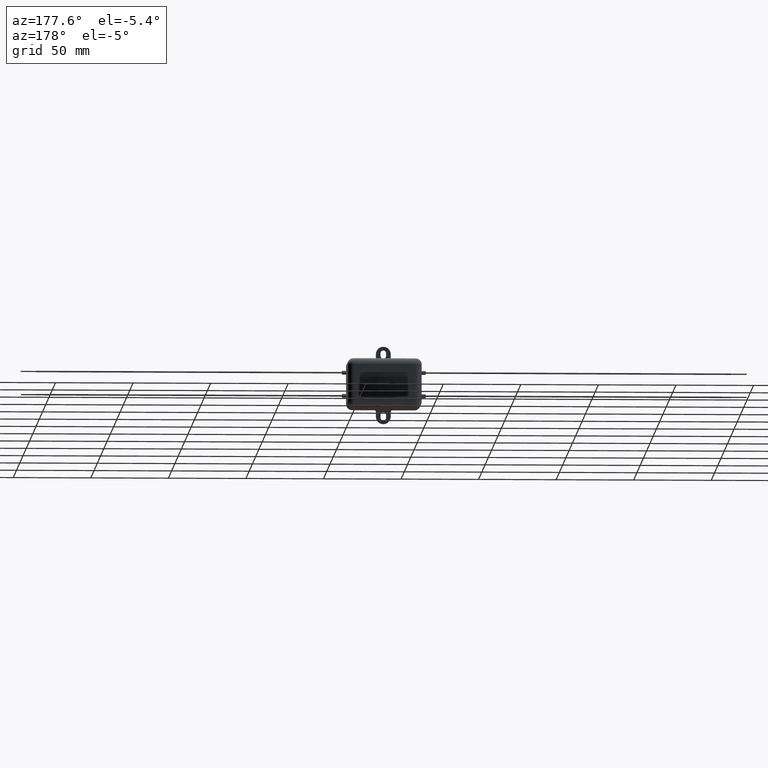
[diagram: clean part render]
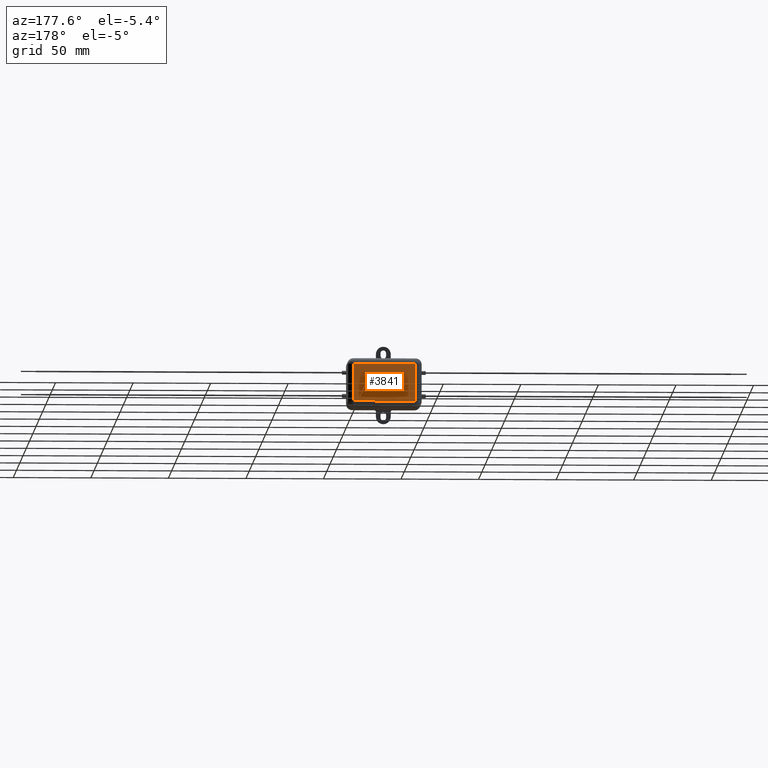
[diagram: same view with one face highlighted and labeled with its STEP entity id]
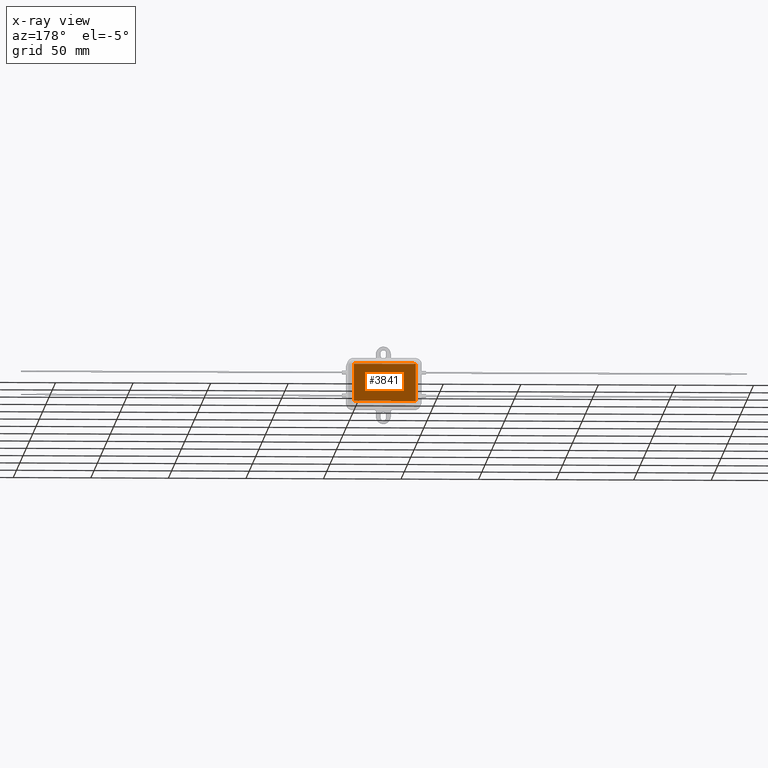
[diagram: x-ray of the same camera — body ghosted, the highlighted face saturated]
A machine part, auxiliary view. The second image highlights one B-rep face of the part: STEP entity #3841.
The next image is the same camera in x-ray: the body ghosted, the highlighted face saturated — about 0% of this face is hidden behind the body in this view.
In plain terms, the highlighted planar face has unit normal (0, -1, 0).
Its self-contained STEP definition (entity closure, byte-faithful):
#20 = CARTESIAN_POINT ( 'NONE',  ( 14.83493621545370000, 22.00000000000000000, -13.57643163523669300 ) ) ;
#24 = VECTOR ( 'NONE', #89, 1000.000000000000000 ) ;
#33 = VECTOR ( 'NONE', #1306, 1000.000000000000000 ) ;
#34 = CARTESIAN_POINT ( 'NONE',  ( 36.09030853154751400, 22.00000000000000000, -17.48081421924308600 ) ) ;
#51 = CARTESIAN_POINT ( 'NONE',  ( 29.69901283016910700, 22.00000000000000000, -17.49399904009918300 ) ) ;
#62 = VECTOR ( 'NONE', #2306, 1000.000000000000200 ) ;
#74 = VECTOR ( 'NONE', #1830, 1000.000000000000100 ) ;
#86 = EDGE_CURVE ( 'NONE', #4508, #816, #3597, .T. ) ;
#89 = DIRECTION ( 'NONE',  ( -1.000000000000000000, 0.0000000000000000000, 0.0000000000000000000 ) ) ;
#93 = DIRECTION ( 'NONE',  ( 0.2746459304916880600, 0.0000000000000000000, -0.9615454294334484500 ) ) ;
#95 = ORIENTED_EDGE ( 'NONE', *, *, #3719, .F. ) ;
#98 = DIRECTION ( 'NONE',  ( -1.000000000000000000, 0.0000000000000000000, 0.0000000000000000000 ) ) ;
#110 = VECTOR ( 'NONE', #98, 1000.000000000000000 ) ;
#132 = CARTESIAN_POINT ( 'NONE',  ( 32.18317459056929400, 22.00000000000000000, -18.41519455726100700 ) ) ;
#137 = VERTEX_POINT ( 'NONE', #398 ) ;
#141 = LINE ( 'NONE', #2710, #2344 ) ;
#154 = CARTESIAN_POINT ( 'NONE',  ( 36.35883328403941300, 22.00000000000000000, -18.41519455726100700 ) ) ;
#168 = ORIENTED_EDGE ( 'NONE', *, *, #1137, .F. ) ;
#171 = CARTESIAN_POINT ( 'NONE',  ( 25.38734935549757700, 22.00000000000000000, -13.57643163523669300 ) ) ;
#177 = EDGE_CURVE ( 'NONE', #3521, #4200, #2600, .T. ) ;
#205 = VECTOR ( 'NONE', #2843, 1000.000000000000200 ) ;
#211 = VECTOR ( 'NONE', #93, 1000.000000000000100 ) ;
#215 = EDGE_CURVE ( 'NONE', #2736, #137, #4352, .T. ) ;
#228 = VERTEX_POINT ( 'NONE', #3271 ) ;
#237 = CARTESIAN_POINT ( 'NONE',  ( 19.08610836929973300, 22.00000000000000000, -16.59415174206769800 ) ) ;
#244 = VECTOR ( 'NONE', #5015, 1000.000000000000100 ) ;
#280 = VECTOR ( 'NONE', #2840, 1000.000000000000000 ) ;
#287 = FACE_BOUND ( 'NONE', #4386, .T. ) ;
#291 = LINE ( 'NONE', #2863, #33 ) ;
#298 = VERTEX_POINT ( 'NONE', #237 ) ;
#299 = EDGE_CURVE ( 'NONE', #4662, #4840, #4476, .T. ) ;
#302 = ORIENTED_EDGE ( 'NONE', *, *, #3122, .T. ) ;
#303 = CARTESIAN_POINT ( 'NONE',  ( 26.61695381072859600, 22.00000000000000000, -13.57643163523669300 ) ) ;
#329 = DIRECTION ( 'NONE',  ( -0.2762517575166424900, 0.0000000000000000000, 0.9610853065513831300 ) ) ;
#330 = CARTESIAN_POINT ( 'NONE',  ( 11.65137384793949200, 22.00000000000000000, -13.57643163523669300 ) ) ;
#351 = DIRECTION ( 'NONE',  ( 1.000000000000000000, 0.0000000000000000000, 0.0000000000000000000 ) ) ;
#367 = VERTEX_POINT ( 'NONE', #3073 ) ;
#374 = LINE ( 'NONE', #2489, #2214 ) ;
#384 = VECTOR ( 'NONE', #1727, 1000.000000000000000 ) ;
#387 = DIRECTION ( 'NONE',  ( 0.9999891854650020400, 0.0000000000000000000, 0.004650693823679311400 ) ) ;
#388 = VECTOR ( 'NONE', #4697, 1000.000000000000000 ) ;
#389 = EDGE_CURVE ( 'NONE', #3911, #699, #2928, .T. ) ;
#398 = CARTESIAN_POINT ( 'NONE',  ( 28.59108292885930400, 22.00000000000000000, -18.41519455726100700 ) ) ;
#418 = DIRECTION ( 'NONE',  ( -1.000000000000000000, 0.0000000000000000000, 0.0000000000000000000 ) ) ;
#442 = LINE ( 'NONE', #2971, #4214 ) ;
#448 = EDGE_CURVE ( 'NONE', #4311, #298, #3534, .T. ) ;
#455 = EDGE_CURVE ( 'NONE', #1007, #3488, #697, .T. ) ;
#464 = ORIENTED_EDGE ( 'NONE', *, *, #2799, .F. ) ;
#470 = VERTEX_POINT ( 'NONE', #5085 ) ;
#473 = EDGE_CURVE ( 'NONE', #2396, #3633, #2862, .T. ) ;
#483 = VECTOR ( 'NONE', #2909, 1000.000000000000200 ) ;
#496 = DIRECTION ( 'NONE',  ( -0.05596501978067839500, 0.0000000000000000000, 0.9984327301130248000 ) ) ;
#504 = ORIENTED_EDGE ( 'NONE', *, *, #1569, .F. ) ;
#511 = ORIENTED_EDGE ( 'NONE', *, *, #814, .F. ) ;
#512 = CARTESIAN_POINT ( 'NONE',  ( 13.82823012359501600, 22.00000000000000000, -16.35175897160676700 ) ) ;
#531 = FACE_OUTER_BOUND ( 'NONE', #1821, .T. ) ;
#558 = LINE ( 'NONE', #3047, #5060 ) ;
#577 = VECTOR ( 'NONE', #4540, 1000.000000000000100 ) ;
#583 = VECTOR ( 'NONE', #3872, 1000.000000000000000 ) ;
#596 = VERTEX_POINT ( 'NONE', #3644 ) ;
#610 = LINE ( 'NONE', #4280, #3074 ) ;
#647 = ORIENTED_EDGE ( 'NONE', *, *, #1496, .F. ) ;
#650 = FACE_BOUND ( 'NONE', #957, .T. ) ;
#657 = DIRECTION ( 'NONE',  ( -0.2765379750249973800, 0.0000000000000000000, 0.9610029908221274800 ) ) ;
#688 = VECTOR ( 'NONE', #3468, 1000.000000000000200 ) ;
#693 = LINE ( 'NONE', #4953, #2524 ) ;
#697 = LINE ( 'NONE', #2309, #4910 ) ;
#699 = VERTEX_POINT ( 'NONE', #2494 ) ;
#714 = EDGE_CURVE ( 'NONE', #4017, #3974, #2404, .T. ) ;
#730 = CARTESIAN_POINT ( 'NONE',  ( 21.19861101571806500, 22.00000000000000000, -13.57643163523669300 ) ) ;
#773 = CARTESIAN_POINT ( 'NONE',  ( 25.38734935549757700, 22.00000000000000000, -13.57643163523669300 ) ) ;
#814 = EDGE_CURVE ( 'NONE', #1357, #228, #2398, .T. ) ;
#816 = VERTEX_POINT ( 'NONE', #4949 ) ;
#817 = LINE ( 'NONE', #330, #688 ) ;
#822 = LINE ( 'NONE', #4555, #1851 ) ;
#847 = CARTESIAN_POINT ( 'NONE',  ( 19.34799555076291000, 22.00000000000000000, -17.49416088049775200 ) ) ;
#853 = EDGE_CURVE ( 'NONE', #2156, #2407, #442, .T. ) ;
#865 = ORIENTED_EDGE ( 'NONE', *, *, #928, .F. ) ;
#868 = ORIENTED_EDGE ( 'NONE', *, *, #1670, .F. ) ;
#873 = VERTEX_POINT ( 'NONE', #4282 ) ;
#919 = EDGE_CURVE ( 'NONE', #3316, #367, #817, .T. ) ;
#923 = EDGE_CURVE ( 'NONE', #4200, #2156, #3584, .T. ) ;
#928 = EDGE_CURVE ( 'NONE', #3042, #4916, #2921, .T. ) ;
#940 = LINE ( 'NONE', #3438, #4515 ) ;
#943 = CARTESIAN_POINT ( 'NONE',  ( 14.41971262186183500, 22.00000000000000000, -18.41519455726100300 ) ) ;
#957 = EDGE_LOOP ( 'NONE', ( #4801, #4640, #4190, #1948, #168, #3838, #2968, #3368, #5028, #511, #3082, #4440, #95, #4659, #3837, #504, #647, #2343, #4474, #4585, #1179, #3821, #4271 ) ) ;
#960 = EDGE_CURVE ( 'NONE', #4299, #1942, #940, .T. ) ;
#976 = CARTESIAN_POINT ( 'NONE',  ( 13.78034007614625400, 22.00000000000000000, -16.20374857577328200 ) ) ;
#1003 = VECTOR ( 'NONE', #3870, 1000.000000000000000 ) ;
#1007 = VERTEX_POINT ( 'NONE', #2197 ) ;
#1012 = VECTOR ( 'NONE', #1271, 1000.000000000000000 ) ;
#1017 = DIRECTION ( 'NONE',  ( -0.2760118818968555500, 0.0000000000000000000, 0.9611542233438691300 ) ) ;
#1033 = ORIENTED_EDGE ( 'NONE', *, *, #4595, .F. ) ;
#1059 = DIRECTION ( 'NONE',  ( 0.0000000000000000000, 0.0000000000000000000, -1.000000000000000000 ) ) ;
#1060 = VERTEX_POINT ( 'NONE', #2949 ) ;
#1067 = VERTEX_POINT ( 'NONE', #976 ) ;
#1068 = VECTOR ( 'NONE', #5112, 1000.000000000000000 ) ;
#1072 = VECTOR ( 'NONE', #2287, 1000.000000000000000 ) ;
#1073 = DIRECTION ( 'NONE',  ( 0.2746918797667241000, 0.0000000000000000000, -0.9615323037684296900 ) ) ;
#1079 = EDGE_CURVE ( 'NONE', #2683, #2736, #1533, .T. ) ;
#1084 = EDGE_CURVE ( 'NONE', #1942, #4841, #1229, .T. ) ;
#1086 = CARTESIAN_POINT ( 'NONE',  ( 28.83863987526616100, 22.00000000000000000, -14.49718576949957200 ) ) ;
#1093 = LINE ( 'NONE', #4107, #110 ) ;
#1103 = VERTEX_POINT ( 'NONE', #4090 ) ;
#1104 = VECTOR ( 'NONE', #4895, 1000.000000000000000 ) ;
#1115 = VECTOR ( 'NONE', #2511, 1000.000000000000100 ) ;
#1127 = CARTESIAN_POINT ( 'NONE',  ( 31.91640276791383400, 22.00000000000000000, -17.48776082858419300 ) ) ;
#1137 = EDGE_CURVE ( 'NONE', #1865, #1485, #374, .T. ) ;
#1175 = ORIENTED_EDGE ( 'NONE', *, *, #714, .F. ) ;
#1178 = CARTESIAN_POINT ( 'NONE',  ( 18.83090078223975900, 22.00000000000000000, -15.69963046423686000 ) ) ;
#1179 = ORIENTED_EDGE ( 'NONE', *, *, #2764, .F. ) ;
#1229 = LINE ( 'NONE', #2887, #1104 ) ;
#1242 = ORIENTED_EDGE ( 'NONE', *, *, #3043, .F. ) ;
#1257 = LINE ( 'NONE', #1178, #4158 ) ;
#1271 = DIRECTION ( 'NONE',  ( -1.000000000000000000, 0.0000000000000000000, 0.0000000000000000000 ) ) ;
#1279 = ORIENTED_EDGE ( 'NONE', *, *, #4605, .F. ) ;
#1287 = VERTEX_POINT ( 'NONE', #3339 ) ;
#1292 = VECTOR ( 'NONE', #4360, 1000.000000000000100 ) ;
#1294 = VERTEX_POINT ( 'NONE', #1393 ) ;
#1295 = CARTESIAN_POINT ( 'NONE',  ( 33.64323976159708700, 22.00000000000000000, -13.57643163523669300 ) ) ;
#1306 = DIRECTION ( 'NONE',  ( 1.000000000000000000, 0.0000000000000000000, 0.0000000000000000000 ) ) ;
#1310 = VECTOR ( 'NONE', #1700, 999.9999999999998900 ) ;
#1317 = ORIENTED_EDGE ( 'NONE', *, *, #4552, .F. ) ;
#1321 = CARTESIAN_POINT ( 'NONE',  ( 29.69901283016910700, 22.00000000000000000, -17.49399904009918300 ) ) ;
#1355 = LINE ( 'NONE', #3246, #244 ) ;
#1357 = VERTEX_POINT ( 'NONE', #4670 ) ;
#1363 = ORIENTED_EDGE ( 'NONE', *, *, #3934, .F. ) ;
#1373 = DIRECTION ( 'NONE',  ( 0.2729786930695301000, 0.0000000000000000000, -0.9620200793798698900 ) ) ;
#1377 = ORIENTED_EDGE ( 'NONE', *, *, #960, .F. ) ;
#1393 = CARTESIAN_POINT ( 'NONE',  ( 23.05533228119820800, 22.00000000000000000, -13.57643163523669300 ) ) ;
#1410 = CARTESIAN_POINT ( 'NONE',  ( 4.000000000000000000, 22.00000000000000000, -4.000000000000000000 ) ) ;
#1473 = CARTESIAN_POINT ( 'NONE',  ( 0.0000000000000000000, 22.00000000000000000, -4.000000000000000000 ) ) ;
#1485 = VERTEX_POINT ( 'NONE', #3968 ) ;
#1496 = EDGE_CURVE ( 'NONE', #699, #470, #1257, .T. ) ;
#1533 = LINE ( 'NONE', #3659, #1721 ) ;
#1547 = VECTOR ( 'NONE', #2751, 1000.000000000000000 ) ;
#1551 = CARTESIAN_POINT ( 'NONE',  ( 13.82823012359501600, 22.00000000000000000, -16.35175897160677000 ) ) ;
#1569 = EDGE_CURVE ( 'NONE', #470, #4311, #2109, .T. ) ;
#1574 = DIRECTION ( 'NONE',  ( 0.2759782365590783300, 0.0000000000000000000, -0.9611638845408943000 ) ) ;
#1581 = DIRECTION ( 'NONE',  ( 0.3725077383644747600, -0.0000000000000000000, 0.9280290862136725300 ) ) ;
#1595 = VERTEX_POINT ( 'NONE', #847 ) ;
#1598 = CARTESIAN_POINT ( 'NONE',  ( 44.00000000000000000, 22.00000000000000000, -4.000000000000000000 ) ) ;
#1603 = VERTEX_POINT ( 'NONE', #4472 ) ;
#1625 = CARTESIAN_POINT ( 'NONE',  ( 15.88466243409245000, 22.00000000000000000, -18.41519455726100300 ) ) ;
#1635 = EDGE_CURVE ( 'NONE', #2377, #1357, #2868, .T. ) ;
#1637 = VERTEX_POINT ( 'NONE', #512 ) ;
#1657 = VECTOR ( 'NONE', #496, 1000.000000000000200 ) ;
#1670 = EDGE_CURVE ( 'NONE', #816, #2721, #5037, .T. ) ;
#1679 = CARTESIAN_POINT ( 'NONE',  ( 4.000000000000000000, 22.00000000000000000, 0.0000000000000000000 ) ) ;
#1700 = DIRECTION ( 'NONE',  ( 0.9999960426590096500, 0.0000000000000000000, 0.002813301676026527500 ) ) ;
#1707 = DIRECTION ( 'NONE',  ( 0.2793947940814895400, 0.0000000000000000000, -0.9601763114346041400 ) ) ;
#1710 = DIRECTION ( 'NONE',  ( -1.000000000000000000, -0.0000000000000000000, -0.0000000000000000000 ) ) ;
#1721 = VECTOR ( 'NONE', #2542, 1000.000000000000100 ) ;
#1725 = ORIENTED_EDGE ( 'NONE', *, *, #455, .F. ) ;
#1726 = LINE ( 'NONE', #4167, #3332 ) ;
#1727 = DIRECTION ( 'NONE',  ( 0.0000000000000000000, 0.0000000000000000000, 1.000000000000000000 ) ) ;
#1755 = VECTOR ( 'NONE', #351, 1000.000000000000000 ) ;
#1769 = EDGE_CURVE ( 'NONE', #298, #1595, #4532, .T. ) ;
#1786 = VERTEX_POINT ( 'NONE', #4116 ) ;
#1792 = DIRECTION ( 'NONE',  ( -0.3829140317376952800, -0.0000000000000000000, -0.9237839814038686400 ) ) ;
#1797 = LINE ( 'NONE', #2947, #2980 ) ;
#1804 = EDGE_CURVE ( 'NONE', #4841, #4017, #1797, .T. ) ;
#1817 = CARTESIAN_POINT ( 'NONE',  ( 31.51365559346003300, 22.00000000000000000, -16.59398990166655000 ) ) ;
#1821 = EDGE_LOOP ( 'NONE', ( #3340, #302, #2638, #2437 ) ) ;
#1830 = DIRECTION ( 'NONE',  ( 0.2740217765954144300, 0.0000000000000000000, -0.9617234872620574700 ) ) ;
#1851 = VECTOR ( 'NONE', #1017, 1000.000000000000100 ) ;
#1865 = VERTEX_POINT ( 'NONE', #4979 ) ;
#1888 = VERTEX_POINT ( 'NONE', #2198 ) ;
#1895 = CARTESIAN_POINT ( 'NONE',  ( 22.29681578845227100, 22.00000000000000000, -18.41519455726100700 ) ) ;
#1909 = CARTESIAN_POINT ( 'NONE',  ( 31.25815375114582300, 22.00000000000000000, -15.69963046422670800 ) ) ;
#1927 = LINE ( 'NONE', #1086, #583 ) ;
#1937 = ORIENTED_EDGE ( 'NONE', *, *, #3887, .F. ) ;
#1938 = LINE ( 'NONE', #730, #1755 ) ;
#1942 = VERTEX_POINT ( 'NONE', #1817 ) ;
#1948 = ORIENTED_EDGE ( 'NONE', *, *, #3482, .F. ) ;
#1949 = CARTESIAN_POINT ( 'NONE',  ( 17.47705419945651800, 22.00000000000000000, -18.41519455726100300 ) ) ;
#1994 = EDGE_CURVE ( 'NONE', #3633, #1287, #2974, .T. ) ;
#2007 = CARTESIAN_POINT ( 'NONE',  ( 28.00813382926005700, 22.00000000000000000, -18.41519455726100700 ) ) ;
#2022 = EDGE_CURVE ( 'NONE', #2721, #1103, #3969, .T. ) ;
#2036 = CARTESIAN_POINT ( 'NONE',  ( 34.76549989795430000, 22.00000000000000000, -17.48091939377533800 ) ) ;
#2040 = LINE ( 'NONE', #3187, #1547 ) ;
#2047 = CARTESIAN_POINT ( 'NONE',  ( 32.26485984687753500, 22.00000000000000000, -13.57643163523669300 ) ) ;
#2053 = EDGE_CURVE ( 'NONE', #4098, #1637, #2656, .T. ) ;
#2055 = CARTESIAN_POINT ( 'NONE',  ( 21.81417831089463300, 22.00000000000000000, -18.41519455726100300 ) ) ;
#2109 = LINE ( 'NONE', #4328, #211 ) ;
#2139 = DIRECTION ( 'NONE',  ( 0.4668459304955207000, 0.0000000000000000000, -0.8843386665637613700 ) ) ;
#2156 = VERTEX_POINT ( 'NONE', #1598 ) ;
#2180 = CARTESIAN_POINT ( 'NONE',  ( 4.000000000000000000, 22.00000000000000000, -28.00000000000000000 ) ) ;
#2186 = EDGE_CURVE ( 'NONE', #3937, #3911, #2719, .T. ) ;
#2197 = CARTESIAN_POINT ( 'NONE',  ( 31.11638156684569600, 22.00000000000000000, -14.49718576949957200 ) ) ;
#2198 = CARTESIAN_POINT ( 'NONE',  ( 13.02729672735233800, 22.00000000000000000, -13.57643163523669600 ) ) ;
#2214 = VECTOR ( 'NONE', #2139, 1000.000000000000100 ) ;
#2239 = ORIENTED_EDGE ( 'NONE', *, *, #215, .F. ) ;
#2287 = DIRECTION ( 'NONE',  ( -0.2763173343569904100, 0.0000000000000000000, 0.9610664548998925100 ) ) ;
#2289 = CARTESIAN_POINT ( 'NONE',  ( 16.30721298365983400, 22.00000000000000000, -13.57643163523669300 ) ) ;
#2291 = CARTESIAN_POINT ( 'NONE',  ( 21.55258538469110300, 22.00000000000000000, -17.49416088049775200 ) ) ;
#2295 = DIRECTION ( 'NONE',  ( 0.2755265765475168300, -0.0000000000000000000, -0.9612934544747536700 ) ) ;
#2306 = DIRECTION ( 'NONE',  ( 0.2762437428917324200, 0.0000000000000000000, -0.9610876102172820600 ) ) ;
#2309 = CARTESIAN_POINT ( 'NONE',  ( 31.11638156684569600, 22.00000000000000000, -14.49718576949957200 ) ) ;
#2311 = CARTESIAN_POINT ( 'NONE',  ( 13.78034007614625400, 22.00000000000000000, -16.20374857577327900 ) ) ;
#2343 = ORIENTED_EDGE ( 'NONE', *, *, #389, .F. ) ;
#2344 = VECTOR ( 'NONE', #1792, 1000.000000000000100 ) ;
#2347 = VECTOR ( 'NONE', #5023, 1000.000000000000000 ) ;
#2353 = DIRECTION ( 'NONE',  ( -1.000000000000000000, 0.0000000000000000000, 0.0000000000000000000 ) ) ;
#2354 = CARTESIAN_POINT ( 'NONE',  ( 21.17058320605549300, 22.00000000000000000, -14.49700921635597700 ) ) ;
#2359 = CARTESIAN_POINT ( 'NONE',  ( 21.81417831089463300, 22.00000000000000000, -18.41519455726100300 ) ) ;
#2377 = VERTEX_POINT ( 'NONE', #2055 ) ;
#2396 = VERTEX_POINT ( 'NONE', #171 ) ;
#2398 = LINE ( 'NONE', #3400, #4903 ) ;
#2404 = LINE ( 'NONE', #1321, #1310 ) ;
#2407 = VERTEX_POINT ( 'NONE', #3313 ) ;
#2437 = ORIENTED_EDGE ( 'NONE', *, *, #923, .T. ) ;
#2445 = LINE ( 'NONE', #2291, #1292 ) ;
#2447 = VERTEX_POINT ( 'NONE', #3985 ) ;
#2489 = CARTESIAN_POINT ( 'NONE',  ( 24.34530320303158700, 22.00000000000000000, -13.57643163523669300 ) ) ;
#2494 = CARTESIAN_POINT ( 'NONE',  ( 18.83090078223975900, 22.00000000000000000, -15.69963046423686000 ) ) ;
#2511 = DIRECTION ( 'NONE',  ( -0.2764273280489777900, 0.0000000000000000000, 0.9610348236706632900 ) ) ;
#2517 = LINE ( 'NONE', #3549, #3647 ) ;
#2524 = VECTOR ( 'NONE', #1373, 1000.000000000000200 ) ;
#2526 = ORIENTED_EDGE ( 'NONE', *, *, #1804, .F. ) ;
#2528 = EDGE_CURVE ( 'NONE', #4197, #2377, #2445, .T. ) ;
#2542 = DIRECTION ( 'NONE',  ( 0.2762033010289309300, 0.0000000000000000000, -0.9610992334305139600 ) ) ;
#2599 = LINE ( 'NONE', #3243, #1012 ) ;
#2600 = LINE ( 'NONE', #1679, #384 ) ;
#2606 = ORIENTED_EDGE ( 'NONE', *, *, #3433, .F. ) ;
#2623 = ORIENTED_EDGE ( 'NONE', *, *, #3032, .F. ) ;
#2638 = ORIENTED_EDGE ( 'NONE', *, *, #177, .T. ) ;
#2647 = VECTOR ( 'NONE', #418, 1000.000000000000000 ) ;
#2654 = CARTESIAN_POINT ( 'NONE',  ( 26.61695381072859200, 22.00000000000000000, -13.57643163523669300 ) ) ;
#2656 = LINE ( 'NONE', #1551, #5024 ) ;
#2666 = VECTOR ( 'NONE', #387, 1000.000000000000100 ) ;
#2683 = VERTEX_POINT ( 'NONE', #34 ) ;
#2703 = VERTEX_POINT ( 'NONE', #4028 ) ;
#2709 = CARTESIAN_POINT ( 'NONE',  ( 33.64323976159709400, 22.00000000000000000, -13.57643163523669300 ) ) ;
#2710 = CARTESIAN_POINT ( 'NONE',  ( 15.21817426616144100, 22.00000000000000000, -16.20374857577332900 ) ) ;
#2711 = CARTESIAN_POINT ( 'NONE',  ( 18.48824053188662100, 22.00000000000000000, -14.49700921635597900 ) ) ;
#2719 = LINE ( 'NONE', #2763, #2647 ) ;
#2721 = VERTEX_POINT ( 'NONE', #1295 ) ;
#2730 = DIRECTION ( 'NONE',  ( 0.2763139702539127400, 0.0000000000000000000, -0.9610674221107069500 ) ) ;
#2736 = VERTEX_POINT ( 'NONE', #154 ) ;
#2751 = DIRECTION ( 'NONE',  ( 1.000000000000000000, 0.0000000000000000000, 0.0000000000000000000 ) ) ;
#2763 = CARTESIAN_POINT ( 'NONE',  ( 21.17058320605549300, 22.00000000000000000, -14.49700921635597700 ) ) ;
#2764 = EDGE_CURVE ( 'NONE', #4840, #4593, #1093, .T. ) ;
#2791 = CARTESIAN_POINT ( 'NONE',  ( 13.02729672735233600, 22.00000000000000000, -13.57643163523669300 ) ) ;
#2799 = EDGE_CURVE ( 'NONE', #1637, #873, #4700, .T. ) ;
#2813 = CARTESIAN_POINT ( 'NONE',  ( 16.30721298365983800, 22.00000000000000000, -13.57643163523669300 ) ) ;
#2840 = DIRECTION ( 'NONE',  ( -1.000000000000000000, 0.0000000000000000000, 0.0000000000000000000 ) ) ;
#2843 = DIRECTION ( 'NONE',  ( 0.9999999968487352000, 0.0000000000000000000, 7.938847109813494100E-005 ) ) ;
#2862 = LINE ( 'NONE', #773, #1068 ) ;
#2863 = CARTESIAN_POINT ( 'NONE',  ( 27.19928497039530400, 22.00000000000000000, -13.57643163523669300 ) ) ;
#2868 = LINE ( 'NONE', #2359, #280 ) ;
#2869 = CARTESIAN_POINT ( 'NONE',  ( 23.29679814760840300, 22.00000000000000000, -17.88425507877044000 ) ) ;
#2880 = VECTOR ( 'NONE', #3115, 1000.000000000000000 ) ;
#2887 = CARTESIAN_POINT ( 'NONE',  ( 31.51365559346003300, 22.00000000000000000, -16.59398990166655000 ) ) ;
#2893 = ORIENTED_EDGE ( 'NONE', *, *, #919, .F. ) ;
#2909 = DIRECTION ( 'NONE',  ( 0.2755520632520206400, -0.0000000000000000000, -0.9612861490927424600 ) ) ;
#2921 = LINE ( 'NONE', #2289, #1003 ) ;
#2928 = LINE ( 'NONE', #4269, #74 ) ;
#2947 = CARTESIAN_POINT ( 'NONE',  ( 29.43712564871163200, 22.00000000000000000, -16.59398990166655000 ) ) ;
#2949 = CARTESIAN_POINT ( 'NONE',  ( 15.21817426616144300, 22.00000000000000000, -16.20374857577333200 ) ) ;
#2968 = ORIENTED_EDGE ( 'NONE', *, *, #5022, .F. ) ;
#2971 = CARTESIAN_POINT ( 'NONE',  ( 44.00000000000000000, 22.00000000000000000, 0.0000000000000000000 ) ) ;
#2974 = LINE ( 'NONE', #2654, #3041 ) ;
#2979 = CARTESIAN_POINT ( 'NONE',  ( 24.17138874212246000, 22.00000000000000000, -14.95832015529068600 ) ) ;
#2980 = VECTOR ( 'NONE', #1707, 1000.000000000000100 ) ;
#3002 = VECTOR ( 'NONE', #2295, 999.9999999999998900 ) ;
#3022 = ORIENTED_EDGE ( 'NONE', *, *, #1079, .F. ) ;
#3032 = EDGE_CURVE ( 'NONE', #367, #1888, #4517, .T. ) ;
#3041 = VECTOR ( 'NONE', #2730, 1000.000000000000100 ) ;
#3042 = VERTEX_POINT ( 'NONE', #4310 ) ;
#3043 = EDGE_CURVE ( 'NONE', #1060, #4680, #5080, .T. ) ;
#3047 = CARTESIAN_POINT ( 'NONE',  ( 13.04195064318836100, 22.00000000000000000, -18.41519455726100300 ) ) ;
#3073 = CARTESIAN_POINT ( 'NONE',  ( 11.65137384793949200, 22.00000000000000000, -13.57643163523669300 ) ) ;
#3074 = VECTOR ( 'NONE', #329, 1000.000000000000000 ) ;
#3082 = ORIENTED_EDGE ( 'NONE', *, *, #1635, .F. ) ;
#3115 = DIRECTION ( 'NONE',  ( -1.000000000000000000, -0.0000000000000000000, -0.0000000000000000000 ) ) ;
#3121 = CARTESIAN_POINT ( 'NONE',  ( 24.17138874212246000, 22.00000000000000000, -14.95832015529068900 ) ) ;
#3122 = EDGE_CURVE ( 'NONE', #2407, #3521, #2599, .T. ) ;
#3123 = CARTESIAN_POINT ( 'NONE',  ( 19.34799555076291000, 22.00000000000000000, -17.49416088049775200 ) ) ;
#3145 = CARTESIAN_POINT ( 'NONE',  ( 31.91640276791382600, 22.00000000000000000, -17.48776082858419300 ) ) ;
#3159 = EDGE_CURVE ( 'NONE', #1103, #2683, #4089, .T. ) ;
#3187 = CARTESIAN_POINT ( 'NONE',  ( 23.05533228119820800, 22.00000000000000000, -13.57643163523669300 ) ) ;
#3188 = ORIENTED_EDGE ( 'NONE', *, *, #5049, .F. ) ;
#3202 = CARTESIAN_POINT ( 'NONE',  ( 13.04195064318836100, 22.00000000000000000, -18.41519455726100300 ) ) ;
#3243 = CARTESIAN_POINT ( 'NONE',  ( 0.0000000000000000000, 22.00000000000000000, -28.00000000000000000 ) ) ;
#3246 = CARTESIAN_POINT ( 'NONE',  ( 25.88588532142527800, 22.00000000000000000, -18.41519455726100700 ) ) ;
#3258 = EDGE_CURVE ( 'NONE', #1294, #1865, #2040, .T. ) ;
#3271 = CARTESIAN_POINT ( 'NONE',  ( 16.84706124054505600, 22.00000000000000000, -13.57643163523669300 ) ) ;
#3292 = LINE ( 'NONE', #20, #3416 ) ;
#3313 = CARTESIAN_POINT ( 'NONE',  ( 44.00000000000000000, 22.00000000000000000, -28.00000000000000000 ) ) ;
#3316 = VERTEX_POINT ( 'NONE', #3202 ) ;
#3332 = VECTOR ( 'NONE', #4180, 1000.000000000000000 ) ;
#3339 = CARTESIAN_POINT ( 'NONE',  ( 28.00813382926005700, 22.00000000000000000, -18.41519455726100700 ) ) ;
#3340 = ORIENTED_EDGE ( 'NONE', *, *, #853, .T. ) ;
#3365 = VECTOR ( 'NONE', #3539, 1000.000000000000000 ) ;
#3368 = ORIENTED_EDGE ( 'NONE', *, *, #4789, .F. ) ;
#3387 = ORIENTED_EDGE ( 'NONE', *, *, #3452, .F. ) ;
#3399 = EDGE_CURVE ( 'NONE', #137, #1603, #3905, .T. ) ;
#3400 = CARTESIAN_POINT ( 'NONE',  ( 18.23946242229154500, 22.00000000000000000, -18.41519455726100300 ) ) ;
#3416 = VECTOR ( 'NONE', #1581, 1000.000000000000100 ) ;
#3419 = AXIS2_PLACEMENT_3D ( 'NONE', #3557, #4682, #4698 ) ;
#3430 = FACE_BOUND ( 'NONE', #4433, .T. ) ;
#3433 = EDGE_CURVE ( 'NONE', #3971, #4299, #1726, .T. ) ;
#3438 = CARTESIAN_POINT ( 'NONE',  ( 31.25815375114582300, 22.00000000000000000, -15.69963046422670800 ) ) ;
#3452 = EDGE_CURVE ( 'NONE', #2703, #1007, #693, .T. ) ;
#3468 = DIRECTION ( 'NONE',  ( -0.2762033010251964700, -0.0000000000000000000, 0.9610992334315872100 ) ) ;
#3482 = EDGE_CURVE ( 'NONE', #1485, #2396, #822, .T. ) ;
#3488 = VERTEX_POINT ( 'NONE', #3790 ) ;
#3491 = CARTESIAN_POINT ( 'NONE',  ( 29.18191806165753000, 22.00000000000000000, -15.69963046422670800 ) ) ;
#3521 = VERTEX_POINT ( 'NONE', #2180 ) ;
#3534 = LINE ( 'NONE', #3943, #388 ) ;
#3539 = DIRECTION ( 'NONE',  ( 1.000000000000000000, 0.0000000000000000000, 0.0000000000000000000 ) ) ;
#3549 = CARTESIAN_POINT ( 'NONE',  ( 22.05989616192656700, 22.00000000000000000, -13.57643163523669300 ) ) ;
#3557 = CARTESIAN_POINT ( 'NONE',  ( 0.0000000000000000000, 22.00000000000000000, 0.0000000000000000000 ) ) ;
#3584 = LINE ( 'NONE', #1473, #4770 ) ;
#3597 = LINE ( 'NONE', #4276, #1072 ) ;
#3607 = CARTESIAN_POINT ( 'NONE',  ( 29.43712564871163600, 22.00000000000000000, -16.59398990166655000 ) ) ;
#3625 = ORIENTED_EDGE ( 'NONE', *, *, #2053, .F. ) ;
#3633 = VERTEX_POINT ( 'NONE', #303 ) ;
#3644 = CARTESIAN_POINT ( 'NONE',  ( 22.05989616192656700, 22.00000000000000000, -13.57643163523669300 ) ) ;
#3647 = VECTOR ( 'NONE', #1574, 999.9999999999998900 ) ;
#3659 = CARTESIAN_POINT ( 'NONE',  ( 36.09030853154751400, 22.00000000000000000, -17.48081421924308600 ) ) ;
#3675 = DIRECTION ( 'NONE',  ( -1.000000000000000000, 0.0000000000000000000, 0.0000000000000000000 ) ) ;
#3682 = ORIENTED_EDGE ( 'NONE', *, *, #3159, .F. ) ;
#3698 = CARTESIAN_POINT ( 'NONE',  ( 19.08610836929973000, 22.00000000000000000, -16.59415174206770200 ) ) ;
#3719 = EDGE_CURVE ( 'NONE', #1595, #4197, #4369, .T. ) ;
#3723 = LINE ( 'NONE', #3145, #2666 ) ;
#3736 = LINE ( 'NONE', #2311, #3002 ) ;
#3738 = ORIENTED_EDGE ( 'NONE', *, *, #3399, .F. ) ;
#3762 = EDGE_CURVE ( 'NONE', #1603, #2703, #291, .T. ) ;
#3769 = CARTESIAN_POINT ( 'NONE',  ( 28.59108292885930800, 22.00000000000000000, -18.41519455726100700 ) ) ;
#3781 = ORIENTED_EDGE ( 'NONE', *, *, #1084, .F. ) ;
#3788 = CARTESIAN_POINT ( 'NONE',  ( 21.55258538469109900, 22.00000000000000000, -17.49416088049775200 ) ) ;
#3790 = CARTESIAN_POINT ( 'NONE',  ( 28.83863987526616100, 22.00000000000000000, -14.49718576949957500 ) ) ;
#3799 = LINE ( 'NONE', #2007, #24 ) ;
#3821 = ORIENTED_EDGE ( 'NONE', *, *, #299, .F. ) ;
#3837 = ORIENTED_EDGE ( 'NONE', *, *, #448, .F. ) ;
#3838 = ORIENTED_EDGE ( 'NONE', *, *, #3258, .F. ) ;
#3841 = ADVANCED_FACE ( 'NONE', ( #650, #531, #3430, #287 ), #4631, .F. ) ;
#3870 = DIRECTION ( 'NONE',  ( 1.000000000000000000, -0.0000000000000000000, -0.0000000000000000000 ) ) ;
#3872 = DIRECTION ( 'NONE',  ( 0.2745159998572694900, 0.0000000000000000000, -0.9615825319869135700 ) ) ;
#3887 = EDGE_CURVE ( 'NONE', #1888, #1067, #3736, .T. ) ;
#3904 = CARTESIAN_POINT ( 'NONE',  ( 24.35747372765658300, 22.00000000000000000, -18.41519455726100700 ) ) ;
#3905 = LINE ( 'NONE', #3769, #1115 ) ;
#3911 = VERTEX_POINT ( 'NONE', #2711 ) ;
#3934 = EDGE_CURVE ( 'NONE', #4680, #4098, #5042, .T. ) ;
#3937 = VERTEX_POINT ( 'NONE', #2354 ) ;
#3943 = CARTESIAN_POINT ( 'NONE',  ( 21.16296199483393200, 22.00000000000000000, -16.59415174206770200 ) ) ;
#3948 = CARTESIAN_POINT ( 'NONE',  ( 17.47705419945651800, 22.00000000000000000, -18.41519455726100300 ) ) ;
#3965 = EDGE_CURVE ( 'NONE', #228, #596, #1938, .T. ) ;
#3968 = CARTESIAN_POINT ( 'NONE',  ( 26.63037185058702100, 22.00000000000000000, -17.90500007459512600 ) ) ;
#3969 = LINE ( 'NONE', #2709, #62 ) ;
#3971 = VERTEX_POINT ( 'NONE', #3491 ) ;
#3974 = VERTEX_POINT ( 'NONE', #1127 ) ;
#3981 = VECTOR ( 'NONE', #4405, 1000.000000000000000 ) ;
#3985 = CARTESIAN_POINT ( 'NONE',  ( 23.29679814760840300, 22.00000000000000000, -17.88425507877044400 ) ) ;
#4017 = VERTEX_POINT ( 'NONE', #51 ) ;
#4028 = CARTESIAN_POINT ( 'NONE',  ( 30.85511232143506900, 22.00000000000000000, -13.57643163523669600 ) ) ;
#4089 = LINE ( 'NONE', #2036, #205 ) ;
#4090 = CARTESIAN_POINT ( 'NONE',  ( 34.76549989795430700, 22.00000000000000000, -17.48091939377533400 ) ) ;
#4093 = EDGE_CURVE ( 'NONE', #1287, #1786, #3799, .T. ) ;
#4098 = VERTEX_POINT ( 'NONE', #1625 ) ;
#4107 = CARTESIAN_POINT ( 'NONE',  ( 24.35747372765658300, 22.00000000000000000, -18.41519455726100700 ) ) ;
#4116 = CARTESIAN_POINT ( 'NONE',  ( 25.88588532142528100, 22.00000000000000000, -18.41519455726101000 ) ) ;
#4125 = ORIENTED_EDGE ( 'NONE', *, *, #3762, .F. ) ;
#4158 = VECTOR ( 'NONE', #5102, 1000.000000000000000 ) ;
#4167 = CARTESIAN_POINT ( 'NONE',  ( 29.18191806165753000, 22.00000000000000000, -15.69963046422670800 ) ) ;
#4180 = DIRECTION ( 'NONE',  ( 1.000000000000000000, 0.0000000000000000000, 0.0000000000000000000 ) ) ;
#4184 = CARTESIAN_POINT ( 'NONE',  ( 33.38744366402324500, 22.00000000000000000, -17.48091939378733900 ) ) ;
#4190 = ORIENTED_EDGE ( 'NONE', *, *, #473, .F. ) ;
#4197 = VERTEX_POINT ( 'NONE', #3788 ) ;
#4200 = VERTEX_POINT ( 'NONE', #1410 ) ;
#4214 = VECTOR ( 'NONE', #1059, 1000.000000000000000 ) ;
#4224 = ORIENTED_EDGE ( 'NONE', *, *, #86, .F. ) ;
#4269 = CARTESIAN_POINT ( 'NONE',  ( 18.48824053188661800, 22.00000000000000000, -14.49700921635597700 ) ) ;
#4271 = ORIENTED_EDGE ( 'NONE', *, *, #5051, .F. ) ;
#4276 = CARTESIAN_POINT ( 'NONE',  ( 33.38744366402324500, 22.00000000000000000, -17.48091939378733900 ) ) ;
#4280 = CARTESIAN_POINT ( 'NONE',  ( 22.29681578845226800, 22.00000000000000000, -18.41519455726100700 ) ) ;
#4282 = CARTESIAN_POINT ( 'NONE',  ( 14.41971262186183500, 22.00000000000000000, -18.41519455726100300 ) ) ;
#4299 = VERTEX_POINT ( 'NONE', #1909 ) ;
#4310 = CARTESIAN_POINT ( 'NONE',  ( 14.83493621545370000, 22.00000000000000000, -13.57643163523669300 ) ) ;
#4311 = VERTEX_POINT ( 'NONE', #5059 ) ;
#4323 = CARTESIAN_POINT ( 'NONE',  ( 15.88466243409244600, 22.00000000000000000, -18.41519455726100300 ) ) ;
#4328 = CARTESIAN_POINT ( 'NONE',  ( 20.90746015251409400, 22.00000000000000000, -15.69963046423686000 ) ) ;
#4349 = ORIENTED_EDGE ( 'NONE', *, *, #4402, .F. ) ;
#4352 = LINE ( 'NONE', #132, #4607 ) ;
#4360 = DIRECTION ( 'NONE',  ( 0.2732148821746288600, 0.0000000000000000000, -0.9619530280415482500 ) ) ;
#4369 = LINE ( 'NONE', #3123, #3365 ) ;
#4386 = EDGE_LOOP ( 'NONE', ( #1175, #2526, #3781, #1377, #2606, #4349, #1725, #3387, #4125, #3738, #2239, #3022, #3682, #4401, #868, #4224, #1033 ) ) ;
#4401 = ORIENTED_EDGE ( 'NONE', *, *, #2022, .F. ) ;
#4402 = EDGE_CURVE ( 'NONE', #3488, #3971, #1927, .T. ) ;
#4405 = DIRECTION ( 'NONE',  ( 1.000000000000000000, 0.0000000000000000000, 0.0000000000000000000 ) ) ;
#4433 = EDGE_LOOP ( 'NONE', ( #2893, #3188, #464, #3625, #1363, #1242, #1317, #865, #1279, #1937, #2623 ) ) ;
#4440 = ORIENTED_EDGE ( 'NONE', *, *, #2528, .F. ) ;
#4449 = LINE ( 'NONE', #2869, #1657 ) ;
#4467 = VECTOR ( 'NONE', #4706, 1000.000000000000000 ) ;
#4472 = CARTESIAN_POINT ( 'NONE',  ( 27.19928497039530400, 22.00000000000000000, -13.57643163523669300 ) ) ;
#4474 = ORIENTED_EDGE ( 'NONE', *, *, #2186, .F. ) ;
#4476 = LINE ( 'NONE', #2979, #2347 ) ;
#4508 = VERTEX_POINT ( 'NONE', #4184 ) ;
#4515 = VECTOR ( 'NONE', #1073, 1000.000000000000100 ) ;
#4517 = LINE ( 'NONE', #2791, #4885 ) ;
#4532 = LINE ( 'NONE', #3698, #577 ) ;
#4540 = DIRECTION ( 'NONE',  ( 0.2793947940878384100, 0.0000000000000000000, -0.9601763114327567200 ) ) ;
#4552 = EDGE_CURVE ( 'NONE', #4916, #1060, #141, .T. ) ;
#4555 = CARTESIAN_POINT ( 'NONE',  ( 26.63037185058702500, 22.00000000000000000, -17.90500007459512900 ) ) ;
#4585 = ORIENTED_EDGE ( 'NONE', *, *, #5116, .F. ) ;
#4593 = VERTEX_POINT ( 'NONE', #1895 ) ;
#4595 = EDGE_CURVE ( 'NONE', #3974, #4508, #3723, .T. ) ;
#4605 = EDGE_CURVE ( 'NONE', #1067, #3042, #3292, .T. ) ;
#4607 = VECTOR ( 'NONE', #3675, 1000.000000000000000 ) ;
#4631 = PLANE ( 'NONE',  #3419 ) ;
#4640 = ORIENTED_EDGE ( 'NONE', *, *, #1994, .F. ) ;
#4659 = ORIENTED_EDGE ( 'NONE', *, *, #1769, .F. ) ;
#4662 = VERTEX_POINT ( 'NONE', #3121 ) ;
#4670 = CARTESIAN_POINT ( 'NONE',  ( 18.23946242229154500, 22.00000000000000000, -18.41519455726100300 ) ) ;
#4680 = VERTEX_POINT ( 'NONE', #1949 ) ;
#4682 = DIRECTION ( 'NONE',  ( 0.0000000000000000000, -1.000000000000000000, 0.0000000000000000000 ) ) ;
#4696 = DIRECTION ( 'NONE',  ( -0.7059037656364869400, -0.0000000000000000000, 0.7083077534943605900 ) ) ;
#4697 = DIRECTION ( 'NONE',  ( -1.000000000000000000, 0.0000000000000000000, 0.0000000000000000000 ) ) ;
#4698 = DIRECTION ( 'NONE',  ( 0.0000000000000000000, -0.0000000000000000000, -1.000000000000000000 ) ) ;
#4700 = LINE ( 'NONE', #943, #483 ) ;
#4706 = DIRECTION ( 'NONE',  ( 0.7145695586381823900, -0.0000000000000000000, -0.6995643972270410000 ) ) ;
#4750 = DIRECTION ( 'NONE',  ( 1.000000000000000000, -0.0000000000000000000, -0.0000000000000000000 ) ) ;
#4770 = VECTOR ( 'NONE', #5016, 1000.000000000000000 ) ;
#4789 = EDGE_CURVE ( 'NONE', #596, #2447, #2517, .T. ) ;
#4801 = ORIENTED_EDGE ( 'NONE', *, *, #4093, .F. ) ;
#4840 = VERTEX_POINT ( 'NONE', #3904 ) ;
#4841 = VERTEX_POINT ( 'NONE', #3607 ) ;
#4885 = VECTOR ( 'NONE', #4750, 1000.000000000000000 ) ;
#4895 = DIRECTION ( 'NONE',  ( -1.000000000000000000, 0.0000000000000000000, 0.0000000000000000000 ) ) ;
#4903 = VECTOR ( 'NONE', #657, 1000.000000000000100 ) ;
#4910 = VECTOR ( 'NONE', #2353, 1000.000000000000000 ) ;
#4916 = VERTEX_POINT ( 'NONE', #2813 ) ;
#4949 = CARTESIAN_POINT ( 'NONE',  ( 32.26485984687753500, 22.00000000000000000, -13.57643163523669300 ) ) ;
#4953 = CARTESIAN_POINT ( 'NONE',  ( 30.85511232143507200, 22.00000000000000000, -13.57643163523669300 ) ) ;
#4979 = CARTESIAN_POINT ( 'NONE',  ( 24.34530320303159100, 22.00000000000000000, -13.57643163523669600 ) ) ;
#5015 = DIRECTION ( 'NONE',  ( -0.4443210308329072500, 0.0000000000000000000, 0.8958676361827022600 ) ) ;
#5016 = DIRECTION ( 'NONE',  ( 1.000000000000000000, 0.0000000000000000000, 0.0000000000000000000 ) ) ;
#5022 = EDGE_CURVE ( 'NONE', #2447, #1294, #4449, .T. ) ;
#5023 = DIRECTION ( 'NONE',  ( 0.05375259206908178400, 0.0000000000000000000, -0.9985542843760948400 ) ) ;
#5024 = VECTOR ( 'NONE', #4696, 1000.000000000000000 ) ;
#5028 = ORIENTED_EDGE ( 'NONE', *, *, #3965, .F. ) ;
#5037 = LINE ( 'NONE', #2047, #3981 ) ;
#5042 = LINE ( 'NONE', #4323, #2880 ) ;
#5049 = EDGE_CURVE ( 'NONE', #873, #3316, #558, .T. ) ;
#5051 = EDGE_CURVE ( 'NONE', #1786, #4662, #1355, .T. ) ;
#5059 = CARTESIAN_POINT ( 'NONE',  ( 21.16296199483393200, 22.00000000000000000, -16.59415174206770200 ) ) ;
#5060 = VECTOR ( 'NONE', #1710, 1000.000000000000000 ) ;
#5080 = LINE ( 'NONE', #3948, #4467 ) ;
#5085 = CARTESIAN_POINT ( 'NONE',  ( 20.90746015251409400, 22.00000000000000000, -15.69963046423686000 ) ) ;
#5102 = DIRECTION ( 'NONE',  ( 1.000000000000000000, 0.0000000000000000000, 0.0000000000000000000 ) ) ;
#5112 = DIRECTION ( 'NONE',  ( 1.000000000000000000, 0.0000000000000000000, 0.0000000000000000000 ) ) ;
#5116 = EDGE_CURVE ( 'NONE', #4593, #3937, #610, .T. ) ;